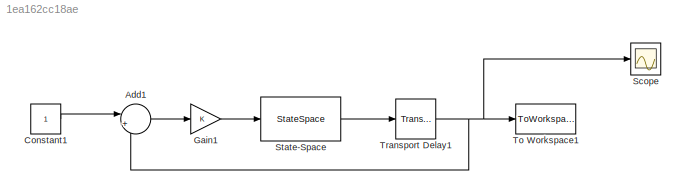
MODEL slx_1ea162cc18ae
KIND model
CONFIG AbsTol = auto
CONFIG EnableMultiTasking = off
CONFIG FixedStep = 0.001
CONFIG MaxStep = auto
CONFIG MinStep = auto
CONFIG RelTol = 1e-3
CONFIG SampleTimeConstraint = Unconstrained
CONFIG Solver = ode4
CONFIG SolverName = ode4
CONFIG StartTime = 0.0
CONFIG StopTime = 1000
BLOCK [Sum] Add1
  IconShape = round
  InputSameDT = off
  Inputs = |+-
  OutDataTypeStr = Inherit: Inherit via internal rule
  Ports = [2, 1]
  SaturateOnIntegerOverflow = off
BLOCK [Constant] Constant1
BLOCK [Gain] Gain1
  OutDataTypeStr = Inherit: Inherit via internal rule
  ParamDataTypeStr = Inherit: Inherit via internal rule
  SaturateOnIntegerOverflow = off
BLOCK [Scope] Scope
  Floating = off
  NumInputPorts = 1
  Ports = [1]
  ScopeSpecificationString = Simulink.scopes.TimeScopeBlockCfg('CurrentConfiguration', extmgr.ConfigurationSet(extmgr.Configuration('Core','General UI',true),extmgr.Configuration('Core','Source UI',true),extmgr.Configuration('Sources','WiredSimulink',true),extmgr.Configuration('Visuals','Time Domain',true,'SerializedDisplays',{struct('MinYLimReal','-0.00044','MaxYLimReal','0.004','YLabelReal','','MinYLimMag','0.00000','MaxYLi...<+1328ch>
BLOCK [StateSpace] State-Space
  A = [0,-1,-1;1,0.200000000000000,0;2.614035837813944,0,-5.177179722467364]
  B = [0;0;0.013333333333333]
  C = [0 0 1]
  D = 0
  InitialCondition = [0 0 0]
  Ports = [1, 1]
BLOCK [ToWorkspace] To Workspace1
  FixptAsFi = on
  MaxDataPoints = inf
  Ports = [1]
  SampleTime = -1
  VariableName = yi1
BLOCK [TransportDelay] Transport Delay1
  DelayTime = 300
  Ports = [1, 1]
LINE Add1:1 -> Gain1:1
LINE Constant1:1 -> Add1:1
LINE Gain1:1 -> State-Space:1
LINE State-Space:1 -> Transport Delay1:1
NET Transport Delay1:1 -> Add1:2, Scope:1, To Workspace1:1
note: NET lines group one-source signal fan-out (src -> all destinations, sorted); 1:1 wires keep LINE
